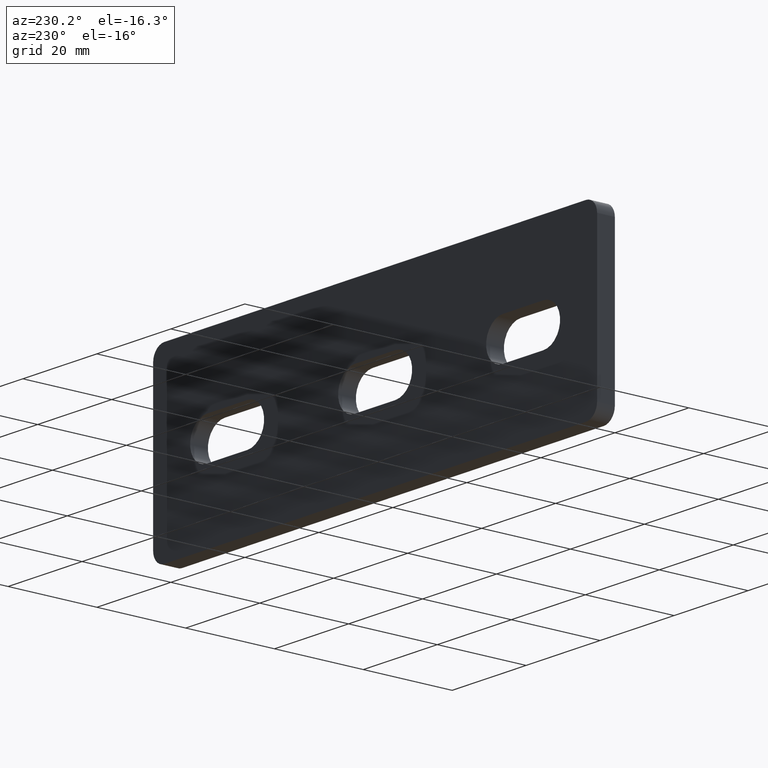
[diagram: clean part render]
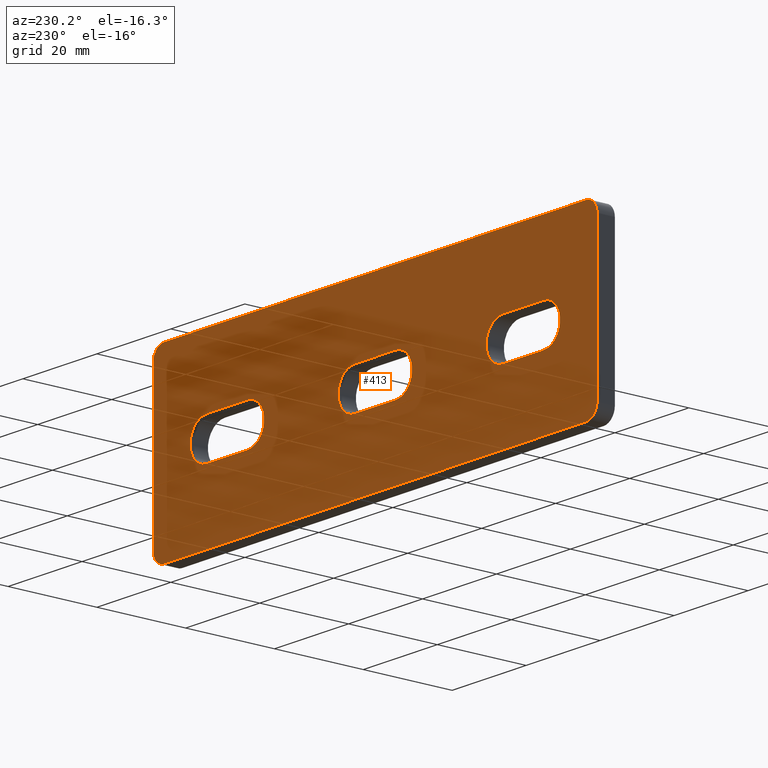
[diagram: same view with one face highlighted and labeled with its STEP entity id]
A machine part, auxiliary view. The second image highlights one B-rep face of the part: STEP entity #413.
In plain terms, the highlighted planar face has unit normal (-0, -1, 0).
Its self-contained STEP definition (entity closure, byte-faithful):
#25=FACE_BOUND('',#54,.T.);
#26=FACE_BOUND('',#55,.T.);
#27=FACE_BOUND('',#56,.T.);
#31=FACE_OUTER_BOUND('',#53,.T.);
#53=EDGE_LOOP('',(#281,#282,#283,#284,#285,#286,#287,#288));
#54=EDGE_LOOP('',(#289,#290,#291,#292));
#55=EDGE_LOOP('',(#293,#294,#295,#296));
#56=EDGE_LOOP('',(#297,#298,#299,#300));
#81=CIRCLE('',#459,3.);
#82=CIRCLE('',#460,3.);
#83=CIRCLE('',#461,3.);
#84=CIRCLE('',#462,3.);
#85=CIRCLE('',#463,4.5);
#86=CIRCLE('',#464,4.5);
#87=CIRCLE('',#465,4.50000000000001);
#88=CIRCLE('',#466,4.50000000000001);
#89=CIRCLE('',#467,4.5);
#90=CIRCLE('',#468,4.5);
#101=LINE('',#630,#141);
#102=LINE('',#634,#142);
#103=LINE('',#638,#143);
#104=LINE('',#642,#144);
#105=LINE('',#648,#145);
#106=LINE('',#651,#146);
#107=LINE('',#656,#147);
#108=LINE('',#659,#148);
#109=LINE('',#664,#149);
#110=LINE('',#667,#150);
#141=VECTOR('',#504,1000.);
#142=VECTOR('',#507,1000.);
#143=VECTOR('',#510,1000.);
#144=VECTOR('',#513,1000.);
#145=VECTOR('',#518,1000.);
#146=VECTOR('',#521,1000.);
#147=VECTOR('',#524,1000.);
#148=VECTOR('',#527,1000.);
#149=VECTOR('',#530,1000.);
#150=VECTOR('',#533,1000.);
#181=VERTEX_POINT('',#628);
#182=VERTEX_POINT('',#629);
#183=VERTEX_POINT('',#631);
#184=VERTEX_POINT('',#633);
#185=VERTEX_POINT('',#635);
#186=VERTEX_POINT('',#637);
#187=VERTEX_POINT('',#639);
#188=VERTEX_POINT('',#641);
#189=VERTEX_POINT('',#644);
#190=VERTEX_POINT('',#645);
#191=VERTEX_POINT('',#647);
#192=VERTEX_POINT('',#649);
#193=VERTEX_POINT('',#652);
#194=VERTEX_POINT('',#653);
#195=VERTEX_POINT('',#655);
#196=VERTEX_POINT('',#657);
#197=VERTEX_POINT('',#660);
#198=VERTEX_POINT('',#661);
#199=VERTEX_POINT('',#663);
#200=VERTEX_POINT('',#665);
#221=EDGE_CURVE('',#181,#182,#101,.T.);
#222=EDGE_CURVE('',#182,#183,#81,.T.);
#223=EDGE_CURVE('',#183,#184,#102,.T.);
#224=EDGE_CURVE('',#184,#185,#82,.T.);
#225=EDGE_CURVE('',#185,#186,#103,.T.);
#226=EDGE_CURVE('',#186,#187,#83,.T.);
#227=EDGE_CURVE('',#187,#188,#104,.T.);
#228=EDGE_CURVE('',#188,#181,#84,.T.);
#229=EDGE_CURVE('',#189,#190,#85,.T.);
#230=EDGE_CURVE('',#191,#189,#105,.T.);
#231=EDGE_CURVE('',#192,#191,#86,.T.);
#232=EDGE_CURVE('',#190,#192,#106,.T.);
#233=EDGE_CURVE('',#193,#194,#87,.T.);
#234=EDGE_CURVE('',#195,#193,#107,.T.);
#235=EDGE_CURVE('',#196,#195,#88,.T.);
#236=EDGE_CURVE('',#194,#196,#108,.T.);
#237=EDGE_CURVE('',#197,#198,#89,.T.);
#238=EDGE_CURVE('',#199,#197,#109,.T.);
#239=EDGE_CURVE('',#200,#199,#90,.T.);
#240=EDGE_CURVE('',#198,#200,#110,.T.);
#281=ORIENTED_EDGE('',*,*,#221,.T.);
#282=ORIENTED_EDGE('',*,*,#222,.T.);
#283=ORIENTED_EDGE('',*,*,#223,.T.);
#284=ORIENTED_EDGE('',*,*,#224,.T.);
#285=ORIENTED_EDGE('',*,*,#225,.T.);
#286=ORIENTED_EDGE('',*,*,#226,.T.);
#287=ORIENTED_EDGE('',*,*,#227,.T.);
#288=ORIENTED_EDGE('',*,*,#228,.T.);
#289=ORIENTED_EDGE('',*,*,#229,.F.);
#290=ORIENTED_EDGE('',*,*,#230,.F.);
#291=ORIENTED_EDGE('',*,*,#231,.F.);
#292=ORIENTED_EDGE('',*,*,#232,.F.);
#293=ORIENTED_EDGE('',*,*,#233,.F.);
#294=ORIENTED_EDGE('',*,*,#234,.F.);
#295=ORIENTED_EDGE('',*,*,#235,.F.);
#296=ORIENTED_EDGE('',*,*,#236,.F.);
#297=ORIENTED_EDGE('',*,*,#237,.F.);
#298=ORIENTED_EDGE('',*,*,#238,.F.);
#299=ORIENTED_EDGE('',*,*,#239,.F.);
#300=ORIENTED_EDGE('',*,*,#240,.F.);
#401=PLANE('',#458);
#413=ADVANCED_FACE('',(#31,#25,#26,#27),#401,.F.);
#458=AXIS2_PLACEMENT_3D('',#627,#502,#503);
#459=AXIS2_PLACEMENT_3D('',#632,#505,#506);
#460=AXIS2_PLACEMENT_3D('',#636,#508,#509);
#461=AXIS2_PLACEMENT_3D('',#640,#511,#512);
#462=AXIS2_PLACEMENT_3D('',#643,#514,#515);
#463=AXIS2_PLACEMENT_3D('',#646,#516,#517);
#464=AXIS2_PLACEMENT_3D('',#650,#519,#520);
#465=AXIS2_PLACEMENT_3D('',#654,#522,#523);
#466=AXIS2_PLACEMENT_3D('',#658,#525,#526);
#467=AXIS2_PLACEMENT_3D('',#662,#528,#529);
#468=AXIS2_PLACEMENT_3D('',#666,#531,#532);
#502=DIRECTION('center_axis',(-5.66993775627602E-31,-1.,0.));
#503=DIRECTION('ref_axis',(0.,0.,-1.));
#504=DIRECTION('',(-1.,-4.93038065763132E-31,4.93038065763132E-32));
#505=DIRECTION('center_axis',(5.66993775627602E-31,1.,0.));
#506=DIRECTION('ref_axis',(0.,0.,-1.));
#507=DIRECTION('',(0.,0.,1.));
#508=DIRECTION('center_axis',(5.66993775627602E-31,1.,0.));
#509=DIRECTION('ref_axis',(0.,0.,-1.));
#510=DIRECTION('',(1.,4.93038065763132E-31,-4.93038065763132E-32));
#511=DIRECTION('center_axis',(5.66993775627602E-31,1.,0.));
#512=DIRECTION('ref_axis',(0.,0.,-1.));
#513=DIRECTION('',(0.,0.,-1.));
#514=DIRECTION('center_axis',(5.66993775627602E-31,1.,0.));
#515=DIRECTION('ref_axis',(0.,0.,-1.));
#516=DIRECTION('center_axis',(5.66993775627602E-31,1.,0.));
#517=DIRECTION('ref_axis',(0.,0.,1.));
#518=DIRECTION('',(1.,4.93038065763132E-31,-4.93038065763132E-32));
#519=DIRECTION('center_axis',(5.66993775627602E-31,1.,0.));
#520=DIRECTION('ref_axis',(0.,0.,1.));
#521=DIRECTION('',(-1.,-4.93038065763132E-31,4.93038065763132E-32));
#522=DIRECTION('center_axis',(5.66993775627602E-31,1.,0.));
#523=DIRECTION('ref_axis',(0.,0.,1.));
#524=DIRECTION('',(1.,4.93038065763132E-31,-4.93038065763132E-32));
#525=DIRECTION('center_axis',(5.66993775627602E-31,1.,0.));
#526=DIRECTION('ref_axis',(0.,0.,1.));
#527=DIRECTION('',(-1.,-4.93038065763132E-31,4.93038065763132E-32));
#528=DIRECTION('center_axis',(5.66993775627602E-31,1.,0.));
#529=DIRECTION('ref_axis',(0.,0.,-1.));
#530=DIRECTION('',(-1.,-4.93038065763132E-31,4.93038065763132E-32));
#531=DIRECTION('center_axis',(5.66993775627602E-31,1.,0.));
#532=DIRECTION('ref_axis',(0.,0.,-1.));
#533=DIRECTION('',(1.,4.93038065763132E-31,-4.93038065763132E-32));
#627=CARTESIAN_POINT('Origin',(-59.9999999999987,3.99999999999978,-20.));
#628=CARTESIAN_POINT('',(56.9999999999986,3.99999999999978,-20.));
#629=CARTESIAN_POINT('',(-56.9999999999986,3.99999999999978,-20.0000000000002));
#630=CARTESIAN_POINT('',(-59.9999999999987,3.99999999999978,-20.));
#631=CARTESIAN_POINT('',(-59.9999999999987,3.99999999999934,-17.0000000000001));
#632=CARTESIAN_POINT('Origin',(-56.9999999999986,4.,-17.0000000000001));
#633=CARTESIAN_POINT('',(-59.9999999999987,4.,16.9999999999999));
#634=CARTESIAN_POINT('',(-59.9999999999987,4.,20.));
#635=CARTESIAN_POINT('',(-56.9999999999986,4.,20.));
#636=CARTESIAN_POINT('Origin',(-56.9999999999986,4.,16.9999999999999));
#637=CARTESIAN_POINT('',(56.9999999999986,3.99999999999978,20.));
#638=CARTESIAN_POINT('',(-59.9999999999987,4.,20.));
#639=CARTESIAN_POINT('',(59.9999999999987,3.99999999999978,16.9999999999999));
#640=CARTESIAN_POINT('Origin',(56.9999999999986,3.99999999999978,16.9999999999999));
#641=CARTESIAN_POINT('',(59.9999999999987,3.99999999999978,-17.0000000000001));
#642=CARTESIAN_POINT('',(59.9999999999987,3.99999999999978,20.));
#643=CARTESIAN_POINT('Origin',(56.9999999999986,3.99999999999978,-17.0000000000001));
#644=CARTESIAN_POINT('',(-34.5000000000013,3.99999999999978,4.49999999999973));
#645=CARTESIAN_POINT('',(-34.5000000000013,4.,-4.49999999999995));
#646=CARTESIAN_POINT('Origin',(-34.5000000000013,4.,0.));
#647=CARTESIAN_POINT('',(-45.5000000000005,3.99999999999978,4.49999999999973));
#648=CARTESIAN_POINT('',(-45.5000000000005,3.99999999999978,4.49999999999973));
#649=CARTESIAN_POINT('',(-45.5000000000005,4.,-4.49999999999995));
#650=CARTESIAN_POINT('Origin',(-45.5000000000005,4.,-6.66133814775094E-13));
#651=CARTESIAN_POINT('',(-34.5000000000013,4.,-4.49999999999995));
#652=CARTESIAN_POINT('',(5.50000000000139,3.99999999999978,4.49999999999973));
#653=CARTESIAN_POINT('',(5.50000000000139,4.,-4.49999999999995));
#654=CARTESIAN_POINT('Origin',(5.50000000000139,4.,0.));
#655=CARTESIAN_POINT('',(-5.50000000000139,3.99999999999978,4.49999999999973));
#656=CARTESIAN_POINT('',(-5.50000000000139,3.99999999999978,4.49999999999973));
#657=CARTESIAN_POINT('',(-5.50000000000139,4.,-4.49999999999995));
#658=CARTESIAN_POINT('Origin',(-5.50000000000139,4.,0.));
#659=CARTESIAN_POINT('',(5.50000000000139,4.,-4.49999999999995));
#660=CARTESIAN_POINT('',(34.5000000000013,4.,-4.49999999999995));
#661=CARTESIAN_POINT('',(34.5000000000013,3.99999999999978,4.49999999999973));
#662=CARTESIAN_POINT('Origin',(34.5000000000013,3.99999999999978,-6.66133814775094E-13));
#663=CARTESIAN_POINT('',(45.5000000000005,4.,-4.49999999999995));
#664=CARTESIAN_POINT('',(34.5000000000013,4.,-4.49999999999995));
#665=CARTESIAN_POINT('',(45.5000000000005,3.99999999999978,4.49999999999973));
#666=CARTESIAN_POINT('Origin',(45.5000000000005,3.99999999999978,-6.66133814775094E-13));
#667=CARTESIAN_POINT('',(45.5000000000005,3.99999999999978,4.49999999999973));